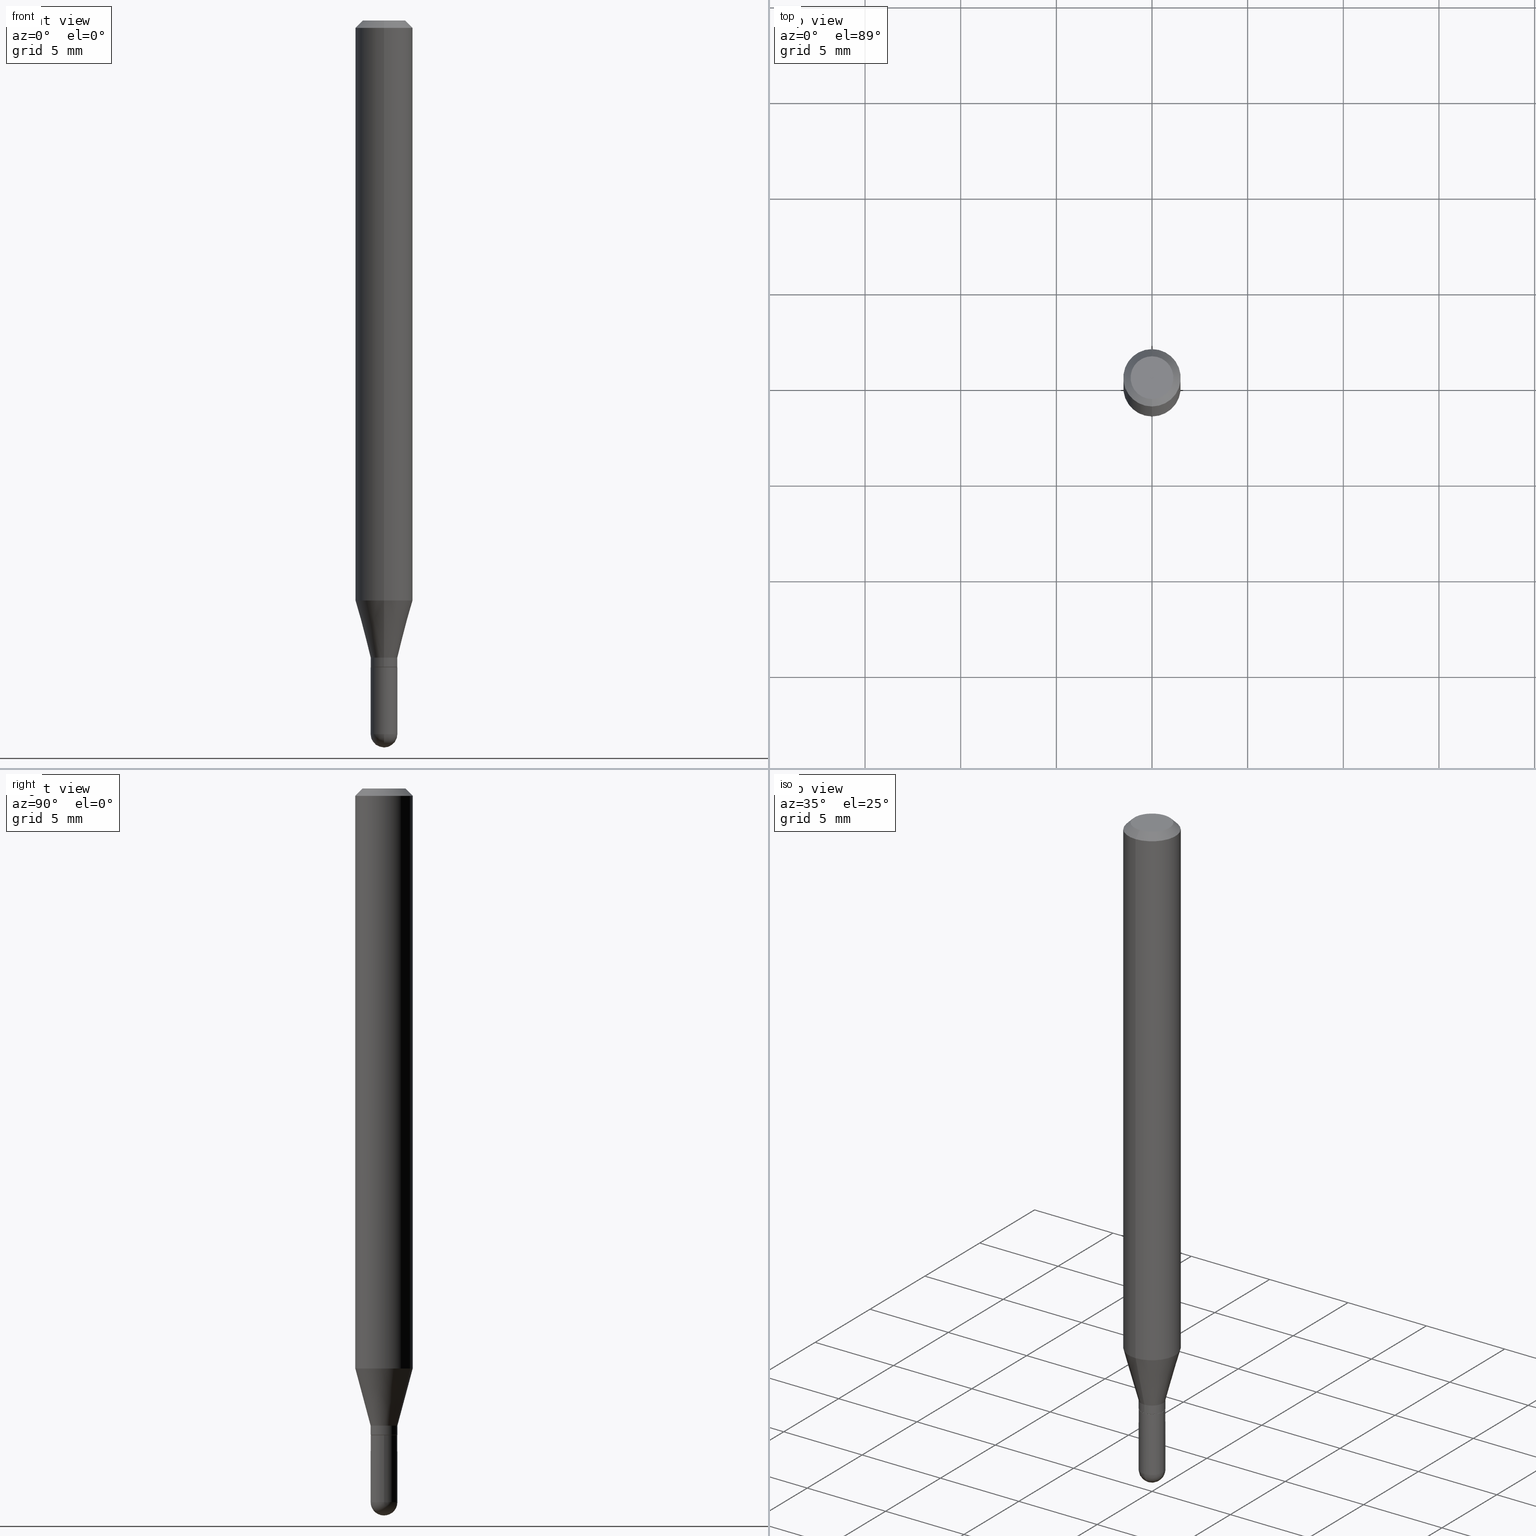
[diagram: canonical four-view strip — front | top / right | iso, engineering-drawing reading convention]
A machine part, canonical four-view strip (front | top / right | iso — engineering-drawing reading convention). The complete STEP part file that produces these views, byte-faithful:
ISO-10303-21;
HEADER;
FILE_DESCRIPTION (( 'STEP AP203' ),
    '1' );
FILE_NAME ('02963.STEP',
    '2024-03-07T22:07:11',
    ( '' ),
    ( '' ),
    'SwSTEP 2.0',
    'SolidWorks 2023',
    '' );
FILE_SCHEMA (( 'CONFIG_CONTROL_DESIGN' ));
ENDSEC;

DATA;
#1 = EDGE_CURVE ( 'NONE', #76, #221, #157, .T. ) ;
#2 = ORIENTED_EDGE ( 'NONE', *, *, #296, .T. ) ;
#3 = APPROVAL_ROLE ( '' ) ;
#4 = CARTESIAN_POINT ( 'NONE',  ( 1.939781668625396050E-16, 0.02704999999999535901, -1.330699999999999772 ) ) ;
#5 = CARTESIAN_POINT ( 'NONE',  ( 3.254189848624601960E-29, -4.646107761550832387E-15, -1.330699999999999772 ) ) ;
#6 = CARTESIAN_POINT ( 'NONE',  ( 1.957545237019436288E-16, 0.02754999999999489455, -1.468549999999999800 ) ) ;
#7 = DIRECTION ( 'NONE',  ( -2.445472194051704055E-29, 3.491476487225395476E-15, 1.000000000000000000 ) ) ;
#8 = DIRECTION ( 'NONE',  ( 1.000000000000000000, -6.982962677686256455E-15, 0.000000000000000000 ) ) ;
#9 = CIRCLE ( 'NONE', #241, 0.02754999999999999810 ) ;
#10 = AXIS2_PLACEMENT_3D ( 'NONE', #14, #167, #288 ) ;
#11 = ADVANCED_FACE ( 'NONE', ( #177 ), #122, .F. ) ;
#12 = EDGE_CURVE ( 'NONE', #39, #84, #470, .T. ) ;
#13 = CARTESIAN_POINT ( 'NONE',  ( 3.668208291077578240E-31, -5.237214730838125755E-17, -0.01500000000000009139 ) ) ;
#14 = CARTESIAN_POINT ( 'NONE',  ( 1.923806217702892103E-16, 0.02754999999999535945, -1.330699999999999772 ) ) ;
#15 = ORIENTED_EDGE ( 'NONE', *, *, #158, .T. ) ;
#16 = CARTESIAN_POINT ( 'NONE',  ( -1.923806217702240553E-16, -0.02755000000000450144, -1.311099999999999932 ) ) ;
#17 = FACE_OUTER_BOUND ( 'NONE', #312, .T. ) ;
#18 = CALENDAR_DATE ( 2024, 7, 3 ) ;
#19 = CARTESIAN_POINT ( 'NONE',  ( 3.254189848624601960E-29, -4.646107761550832387E-15, -1.330699999999999772 ) ) ;
#20 = CARTESIAN_POINT ( 'NONE',  ( -3.536586717851222218E-16, -0.04404999999999999888, 6.213451263233718482E-17 ) ) ;
#21 = CARTESIAN_POINT ( 'NONE',  ( 3.591293215323181808E-29, -5.127414920158100475E-15, -1.468549999999999800 ) ) ;
#22 = AXIS2_PLACEMENT_3D ( 'NONE', #115, #77, #482 ) ;
#23 = ADVANCED_FACE ( 'NONE', ( #452 ), #85, .T. ) ;
#24 = ORIENTED_EDGE ( 'NONE', *, *, #430, .T. ) ;
#25 = ORIENTED_EDGE ( 'NONE', *, *, #189, .T. ) ;
#26 = DIRECTION ( 'NONE',  ( -2.445472194051704055E-29, 3.491476487225395476E-15, 1.000000000000000000 ) ) ;
#27 = CARTESIAN_POINT ( 'NONE',  ( 2.918769859605206058E-29, -4.167218241622863015E-15, -1.193540399561580534 ) ) ;
#28 = CIRCLE ( 'NONE', #112, 0.02754999999999992524 ) ;
#29 = LOCAL_TIME ( 17, 7, 11.00000000000000000, #107 ) ;
#30 = CARTESIAN_POINT ( 'NONE',  ( 4.195754854663390985E-16, 0.05904999999999999832, -2.061716865706596050E-16 ) ) ;
#31 = ORIENTED_EDGE ( 'NONE', *, *, #278, .T. ) ;
#32 = DIRECTION ( 'NONE',  ( -6.982962677686265133E-15, -1.000000000000000000, 3.491476487225395476E-15 ) ) ;
#33 = ORIENTED_EDGE ( 'NONE', *, *, #359, .F. ) ;
#34 = LINE ( 'NONE', #504, #494 ) ;
#35 = EDGE_LOOP ( 'NONE', ( #512, #237, #231, #390 ) ) ;
#36 = DATE_AND_TIME ( #401, #174 ) ;
#37 = AXIS2_PLACEMENT_3D ( 'NONE', #489, #251, #124 ) ;
#38 = FACE_OUTER_BOUND ( 'NONE', #322, .T. ) ;
#39 = VERTEX_POINT ( 'NONE', #412 ) ;
#40 = CARTESIAN_POINT ( 'NONE',  ( 3.076650045841537882E-16, 0.02754999999999534904, -1.311099999999999932 ) ) ;
#41 = ORIENTED_EDGE ( 'NONE', *, *, #149, .F. ) ;
#42 = VERTEX_POINT ( 'NONE', #162 ) ;
#43 = PERSON_AND_ORGANIZATION_ROLE ( 'creator' ) ;
#44 = ADVANCED_FACE ( 'NONE', ( #457 ), #459, .T. ) ;
#45 = EDGE_CURVE ( 'NONE', #441, #221, #249, .T. ) ;
#46 = ADVANCED_BREP_SHAPE_REPRESENTATION ( '02963', ( #468, #104, #499 ), #447 ) ;
#47 = DIRECTION ( 'NONE',  ( 0.000000000000000000, 0.000000000000000000, 1.000000000000000000 ) ) ;
#48 = CARTESIAN_POINT ( 'NONE',  ( -0.02754999999999999810, -4.691010045176429992E-15, -1.468549999999999800 ) ) ;
#49 = EDGE_CURVE ( 'NONE', #134, #61, #233, .T. ) ;
#50 = DIRECTION ( 'NONE',  ( -6.982962677686266711E-15, -1.000000000000000000, 0.000000000000000000 ) ) ;
#51 = VECTOR ( 'NONE', #212, 39.37007874015748854 ) ;
#52 = CARTESIAN_POINT ( 'NONE',  ( 3.591293215323181808E-29, -5.127414920158100475E-15, -1.468549999999999800 ) ) ;
#53 = CC_DESIGN_PERSON_AND_ORGANIZATION_ASSIGNMENT ( #416, #294, ( #97 ) ) ;
#54 = COORDINATED_UNIVERSAL_TIME_OFFSET ( 5, 0, .BEHIND. ) ;
#55 = DIRECTION ( 'NONE',  ( -2.445472194051704055E-29, 3.491476487225395476E-15, 1.000000000000000000 ) ) ;
#56 = DIRECTION ( 'NONE',  ( -2.445472194051704055E-29, 3.491476487225395476E-15, 1.000000000000000000 ) ) ;
#57 = DIRECTION ( 'NONE',  ( -6.982962677686265922E-15, -1.000000000000000000, 3.491476487225395476E-15 ) ) ;
#58 = AXIS2_PLACEMENT_3D ( 'NONE', #125, #331, #216 ) ;
#59 = ORIENTED_EDGE ( 'NONE', *, *, #211, .T. ) ;
#60 = DIRECTION ( 'NONE',  ( 1.000000000000000000, -6.982962677686257244E-15, 0.000000000000000000 ) ) ;
#61 = VERTEX_POINT ( 'NONE', #417 ) ;
#62 = DIRECTION ( 'NONE',  ( -2.445472194051704055E-29, 3.491476487225395476E-15, 1.000000000000000000 ) ) ;
#63 = ORIENTED_EDGE ( 'NONE', *, *, #437, .T. ) ;
#64 = AXIS2_PLACEMENT_3D ( 'NONE', #454, #464, #254 ) ;
#65 = APPROVAL ( #381, 'UNSPECIFIED' ) ;
#66 = AXIS2_PLACEMENT_3D ( 'NONE', #407, #375, #340 ) ;
#67 = CARTESIAN_POINT ( 'NONE',  ( 4.195754854663680892E-16, 0.05904999999999580723, -1.193540399561580756 ) ) ;
#68 = ORIENTED_EDGE ( 'NONE', *, *, #395, .F. ) ;
#69 = DATE_TIME_ROLE ( 'classification_date' ) ;
#70 = ORIENTED_EDGE ( 'NONE', *, *, #430, .F. ) ;
#71 = LOCAL_TIME ( 17, 7, 11.00000000000000000, #197 ) ;
#72 = AXIS2_PLACEMENT_3D ( 'NONE', #510, #153, #8 ) ;
#73 = DIRECTION ( 'NONE',  ( -6.982962677686265922E-15, -1.000000000000000000, 3.491476487225395871E-15 ) ) ;
#74 = ORIENTED_EDGE ( 'NONE', *, *, #209, .T. ) ;
#75 = DIRECTION ( 'NONE',  ( 1.000000000000000000, -6.982962677686265922E-15, 4.876176775795936353E-29 ) ) ;
#76 = VERTEX_POINT ( 'NONE', #48 ) ;
#77 = DIRECTION ( 'NONE',  ( -2.445472194051704055E-29, 3.491476487225395476E-15, 1.000000000000000000 ) ) ;
#78 = EDGE_LOOP ( 'NONE', ( #473, #140, #279, #343 ) ) ;
#79 = AXIS2_PLACEMENT_3D ( 'NONE', #283, #55, #328 ) ;
#80 = CIRCLE ( 'NONE', #144, 0.02755000000000005014 ) ;
#81 = ORIENTED_EDGE ( 'NONE', *, *, #256, .T. ) ;
#82 = CARTESIAN_POINT ( 'NONE',  ( 0.000000000000000000, 0.000000000000000000, 0.000000000000000000 ) ) ;
#83 = DIRECTION ( 'NONE',  ( -2.445468806185136877E-29, 3.491481338843145188E-15, 1.000000000000000000 ) ) ;
#84 = VERTEX_POINT ( 'NONE', #6 ) ;
#85 = SPHERICAL_SURFACE ( 'NONE', #198, 0.02755000000000005014 ) ;
#86 = FACE_OUTER_BOUND ( 'NONE', #406, .T. ) ;
#87 = DIRECTION ( 'NONE',  ( 1.000000000000000000, -6.982962677686256455E-15, 0.000000000000000000 ) ) ;
#88 = CARTESIAN_POINT ( 'NONE',  ( 3.599717260347271507E-16, 0.04404999999999999888, -2.454645658922201879E-16 ) ) ;
#89 = ORIENTED_EDGE ( 'NONE', *, *, #49, .F. ) ;
#90 = DIRECTION ( 'NONE',  ( -6.982962677686266711E-15, -1.000000000000000000, 0.000000000000000000 ) ) ;
#91 = DIRECTION ( 'NONE',  ( -2.445472194051704055E-29, 3.491476487225395476E-15, 1.000000000000000000 ) ) ;
#92 = ADVANCED_FACE ( 'NONE', ( #159 ), #392, .T. ) ;
#93 = DIRECTION ( 'NONE',  ( -6.982962677686265922E-15, -1.000000000000000000, 3.491476487225395871E-15 ) ) ;
#94 = APPROVAL ( #476, 'UNSPECIFIED' ) ;
#95 = ORIENTED_EDGE ( 'NONE', *, *, #348, .F. ) ;
#96 = CC_DESIGN_PERSON_AND_ORGANIZATION_ASSIGNMENT ( #326, #373, ( #226 ) ) ;
#97 = PRODUCT_DEFINITION_FORMATION_WITH_SPECIFIED_SOURCE ( 'ANY', '', #226, .NOT_KNOWN. ) ;
#98 = ADVANCED_FACE ( 'NONE', ( #214 ), #338, .T. ) ;
#99 = CARTESIAN_POINT ( 'NONE',  ( -0.02755000000000000157, -4.691010045176429992E-15, -1.330699999999999772 ) ) ;
#100 = ORIENTED_EDGE ( 'NONE', *, *, #311, .T. ) ;
#101 = DIRECTION ( 'NONE',  ( 7.105427357601001070E-15, 1.000000000000000000, 0.000000000000000000 ) ) ;
#102 = ORIENTED_EDGE ( 'NONE', *, *, #127, .T. ) ;
#103 = CC_DESIGN_DATE_AND_TIME_ASSIGNMENT ( #365, #321, ( #141 ) ) ;
#104 = MANIFOLD_SOLID_BREP ( 'Body-Move/Copy2[2]', #171 ) ;
#105 = VECTOR ( 'NONE', #217, 39.37007874015748143 ) ;
#106 = EDGE_LOOP ( 'NONE', ( #444, #478, #70, #262 ) ) ;
#107 = COORDINATED_UNIVERSAL_TIME_OFFSET ( 5, 0, .BEHIND. ) ;
#108 = DIRECTION ( 'NONE',  ( -2.445472194051704055E-29, 3.491476487225395476E-15, 1.000000000000000000 ) ) ;
#109 = ORIENTED_EDGE ( 'NONE', *, *, #341, .T. ) ;
#110 = ORIENTED_EDGE ( 'NONE', *, *, #45, .T. ) ;
#111 = DIRECTION ( 'NONE',  ( -6.982962677686265922E-15, -1.000000000000000000, 4.626330217890369336E-15 ) ) ;
#112 = AXIS2_PLACEMENT_3D ( 'NONE', #389, #26, #178 ) ;
#113 = CARTESIAN_POINT ( 'NONE',  ( 0.000000000000000000, 0.000000000000000000, 0.000000000000000000 ) ) ;
#114 = EDGE_LOOP ( 'NONE', ( #116, #475, #33, #358 ) ) ;
#115 = CARTESIAN_POINT ( 'NONE',  ( 3.206258593621188259E-29, -4.577674822401215299E-15, -1.311099999999999932 ) ) ;
#116 = ORIENTED_EDGE ( 'NONE', *, *, #189, .F. ) ;
#117 = DIRECTION ( 'NONE',  ( 1.000000000000000000, -6.982962677686266711E-15, 4.883557194083112901E-29 ) ) ;
#118 = CC_DESIGN_SECURITY_CLASSIFICATION ( #207, ( #97 ) ) ;
#119 = CARTESIAN_POINT ( 'NONE',  ( 0.02754999999999999810, -1.923806217702566205E-16, 1.343386701731780333E-30 ) ) ;
#120 = DATE_AND_TIME ( #486, #71 ) ;
#121 = APPLICATION_CONTEXT ( 'configuration controlled 3d designs of mechanical parts and assemblies' ) ;
#122 = PLANE ( 'NONE',  #327 ) ;
#123 = DIRECTION ( 'NONE',  ( -2.445472194051704055E-29, 3.491476487225395476E-15, 1.000000000000000000 ) ) ;
#124 = DIRECTION ( 'NONE',  ( -6.982962677686265922E-15, -1.000000000000000000, 3.505890868245046092E-15 ) ) ;
#125 = CARTESIAN_POINT ( 'NONE',  ( 3.591293215323181808E-29, -5.127414920158100475E-15, -1.468549999999999800 ) ) ;
#126 = CYLINDRICAL_SURFACE ( 'NONE', #137, 0.05904999999999999832 ) ;
#127 = EDGE_CURVE ( 'NONE', #42, #186, #255, .T. ) ;
#128 = CARTESIAN_POINT ( 'NONE',  ( 3.254189848624601960E-29, -4.646107761550832387E-15, -1.330699999999999772 ) ) ;
#129 = CONICAL_SURFACE ( 'NONE', #22, 0.02754999999999992524, 0.2617993877991508511 ) ;
#130 = PERSON_AND_ORGANIZATION ( #345, #218 ) ;
#131 = CIRCLE ( 'NONE', #446, 0.02754999999999999810 ) ;
#132 = CARTESIAN_POINT ( 'NONE',  ( 3.075995059520799729E-16, 0.04404999999999999888, -1.996320525772494279E-16 ) ) ;
#133 = LINE ( 'NONE', #248, #200 ) ;
#134 = VERTEX_POINT ( 'NONE', #4 ) ;
#135 = EDGE_CURVE ( 'NONE', #61, #134, #151, .T. ) ;
#136 = ADVANCED_FACE ( 'NONE', ( #17 ), #143, .T. ) ;
#137 = AXIS2_PLACEMENT_3D ( 'NONE', #383, #165, #57 ) ;
#138 = DIRECTION ( 'NONE',  ( -2.445468806185136597E-29, 3.491481338843145583E-15, 1.000000000000000000 ) ) ;
#139 = LINE ( 'NONE', #30, #427 ) ;
#140 = ORIENTED_EDGE ( 'NONE', *, *, #49, .T. ) ;
#141 = PRODUCT_DEFINITION ( 'UNKNOWN', '', #97, #398 ) ;
#142 = ORIENTED_EDGE ( 'NONE', *, *, #382, .F. ) ;
#143 = CONICAL_SURFACE ( 'NONE', #263, 0.05904999999999999832, 0.7853981633974483900 ) ;
#144 = AXIS2_PLACEMENT_3D ( 'NONE', #386, #172, #176 ) ;
#145 = EDGE_LOOP ( 'NONE', ( #182, #81, #236, #479 ) ) ;
#146 = FACE_OUTER_BOUND ( 'NONE', #431, .T. ) ;
#147 = ORIENTED_EDGE ( 'NONE', *, *, #1, .F. ) ;
#148 = EDGE_CURVE ( 'NONE', #61, #42, #460, .T. ) ;
#149 = EDGE_CURVE ( 'NONE', #433, #273, #467, .T. ) ;
#150 = CYLINDRICAL_SURFACE ( 'NONE', #414, 0.02754999999999999810 ) ;
#151 = CIRCLE ( 'NONE', #66, 0.02705000000000000113 ) ;
#152 = CONICAL_SURFACE ( 'NONE', #349, 0.02705000000000000113, 0.7853981633974739252 ) ;
#153 = DIRECTION ( 'NONE',  ( -2.445468806185136597E-29, 3.491481338843145583E-15, 1.000000000000000000 ) ) ;
#154 = CC_DESIGN_PERSON_AND_ORGANIZATION_ASSIGNMENT ( #451, #43, ( #141 ) ) ;
#155 = ORIENTED_EDGE ( 'NONE', *, *, #211, .F. ) ;
#156 = APPROVAL_STATUS ( 'not_yet_approved' ) ;
#157 = LINE ( 'NONE', #243, #367 ) ;
#158 = EDGE_CURVE ( 'NONE', #84, #76, #9, .T. ) ;
#159 = FACE_OUTER_BOUND ( 'NONE', #357, .T. ) ;
#160 = FACE_OUTER_BOUND ( 'NONE', #78, .T. ) ;
#161 = EDGE_CURVE ( 'NONE', #273, #402, #133, .T. ) ;
#162 = CARTESIAN_POINT ( 'NONE',  ( -1.923806217702242525E-16, -0.02755000000000466451, -1.330199999999999827 ) ) ;
#163 = CARTESIAN_POINT ( 'NONE',  ( 0.02755000000000000157, -4.838494839368829407E-15, -1.330699999999999772 ) ) ;
#164 = APPROVAL_PERSON_ORGANIZATION ( #169, #65, #213 ) ;
#165 = DIRECTION ( 'NONE',  ( -2.445472194051704055E-29, 3.491476487225395476E-15, 1.000000000000000000 ) ) ;
#166 = APPROVAL_DATE_TIME ( #120, #289 ) ;
#167 = DIRECTION ( 'NONE',  ( 2.438088387897960049E-29, -3.491481338843145188E-15, -1.000000000000000000 ) ) ;
#168 = DIRECTION ( 'NONE',  ( 6.982962677686265922E-15, 1.000000000000000000, -3.505890868245046092E-15 ) ) ;
#169 = PERSON_AND_ORGANIZATION ( #345, #218 ) ;
#170 = CARTESIAN_POINT ( 'NONE',  ( 3.668208291077578240E-31, -5.237214730838125755E-17, -0.01500000000000009139 ) ) ;
#171 = CLOSED_SHELL ( 'NONE', ( #44, #369, #98, #319, #440, #92, #463, #136, #11, #448, #455, #295 ) ) ;
#172 = DIRECTION ( 'NONE',  ( -1.000000000000000000, 6.982962677686265922E-15, -4.883557194083112340E-29 ) ) ;
#173 = CIRCLE ( 'NONE', #72, 0.02755000000000000157 ) ;
#174 = LOCAL_TIME ( 17, 7, 11.00000000000000000, #404 ) ;
#175 = EDGE_LOOP ( 'NONE', ( #193, #63, #95, #308 ) ) ;
#176 = DIRECTION ( 'NONE',  ( -6.982962677686266711E-15, -1.000000000000000000, 0.000000000000000000 ) ) ;
#177 = FACE_OUTER_BOUND ( 'NONE', #298, .T. ) ;
#178 = DIRECTION ( 'NONE',  ( -6.982962677686265922E-15, -1.000000000000000000, 0.000000000000000000 ) ) ;
#179 = CLOSED_SHELL ( 'NONE', ( #445, #480, #353, #23, #305 ) ) ;
#180 = AXIS2_PLACEMENT_3D ( 'NONE', #5, #332, #287 ) ;
#181 = DIRECTION ( 'NONE',  ( -2.445472194051704055E-29, 3.491476487225395476E-15, 1.000000000000000000 ) ) ;
#182 = ORIENTED_EDGE ( 'NONE', *, *, #437, .F. ) ;
#183 = DIRECTION ( 'NONE',  ( -2.445472194051704055E-29, 3.491476487225395476E-15, 1.000000000000000000 ) ) ;
#184 = DATE_AND_TIME ( #442, #29 ) ;
#185 = LINE ( 'NONE', #435, #293 ) ;
#186 = VERTEX_POINT ( 'NONE', #16 ) ;
#187 = CIRCLE ( 'NONE', #257, 0.04404999999999999888 ) ;
#188 = ORIENTED_EDGE ( 'NONE', *, *, #348, .T. ) ;
#189 = EDGE_CURVE ( 'NONE', #466, #84, #291, .T. ) ;
#190 = CC_DESIGN_APPROVAL ( #289, ( #141 ) ) ;
#191 = SHAPE_DEFINITION_REPRESENTATION ( #425, #46 ) ;
#192 = DIRECTION ( 'NONE',  ( -2.445472194051704055E-29, 3.491476487225395476E-15, 1.000000000000000000 ) ) ;
#193 = ORIENTED_EDGE ( 'NONE', *, *, #247, .T. ) ;
#194 = DIRECTION ( 'NONE',  ( -2.445472194051704055E-29, 3.491476487225395476E-15, 1.000000000000000000 ) ) ;
#195 = VERTEX_POINT ( 'NONE', #224 ) ;
#196 = CARTESIAN_POINT ( 'NONE',  ( -4.051124067684085231E-16, -0.05905000000000005383, -0.01499999999999988495 ) ) ;
#197 = COORDINATED_UNIVERSAL_TIME_OFFSET ( 5, 0, .BEHIND. ) ;
#198 = AXIS2_PLACEMENT_3D ( 'NONE', #378, #117, #50 ) ;
#199 = AXIS2_PLACEMENT_3D ( 'NONE', #490, #238, #371 ) ;
#200 = VECTOR ( 'NONE', #297, 39.37007874015748854 ) ;
#201 = EDGE_CURVE ( 'NONE', #350, #318, #187, .T. ) ;
#202 = EDGE_CURVE ( 'NONE', #195, #39, #131, .T. ) ;
#203 = MECHANICAL_CONTEXT ( 'NONE', #346, 'mechanical' ) ;
#204 = DIRECTION ( 'NONE',  ( 1.000000000000000000, -6.982962677686265922E-15, 4.876176775795936353E-29 ) ) ;
#205 = DIRECTION ( 'NONE',  ( -2.445472194051704055E-29, 3.491476487225395476E-15, 1.000000000000000000 ) ) ;
#206 = AXIS2_PLACEMENT_3D ( 'NONE', #376, #269, #204 ) ;
#207 = SECURITY_CLASSIFICATION ( '', '', #252 ) ;
#208 = FACE_OUTER_BOUND ( 'NONE', #268, .T. ) ;
#209 = EDGE_CURVE ( 'NONE', #318, #350, #300, .T. ) ;
#210 = PERSON_AND_ORGANIZATION ( #345, #218 ) ;
#211 = EDGE_CURVE ( 'NONE', #350, #303, #185, .T. ) ;
#212 = DIRECTION ( 'NONE',  ( -1.807323732225333689E-15, -0.2588190451025186856, 0.9659258262890687563 ) ) ;
#213 = APPROVAL_ROLE ( '' ) ;
#214 = FACE_OUTER_BOUND ( 'NONE', #501, .T. ) ;
#215 = DIRECTION ( 'NONE',  ( -6.982962677686266711E-15, -1.000000000000000000, 0.000000000000000000 ) ) ;
#216 = DIRECTION ( 'NONE',  ( 1.000000000000000000, -6.982962677686257244E-15, 0.000000000000000000 ) ) ;
#217 = DIRECTION ( 'NONE',  ( -4.937700262164674260E-15, -0.7071067811865632269, 0.7071067811865319186 ) ) ;
#218 = ORGANIZATION ( 'UNSPECIFIED', 'UNSPECIFIED', '' ) ;
#219 = LINE ( 'NONE', #498, #438 ) ;
#220 = ORIENTED_EDGE ( 'NONE', *, *, #202, .T. ) ;
#221 = VERTEX_POINT ( 'NONE', #99 ) ;
#222 = VECTOR ( 'NONE', #227, 39.37007874015748143 ) ;
#223 = AXIS2_PLACEMENT_3D ( 'NONE', #428, #62, #230 ) ;
#224 = CARTESIAN_POINT ( 'NONE',  ( -1.923806217702208999E-16, -0.02755000000000515370, -1.468549999999999800 ) ) ;
#225 = VERTEX_POINT ( 'NONE', #432 ) ;
#226 = PRODUCT ( '02963', '02963', '', ( #203 ) ) ;
#227 = DIRECTION ( 'NONE',  ( -2.445472194051704055E-29, 3.491476487225395476E-15, 1.000000000000000000 ) ) ;
#228 = ORIENTED_EDGE ( 'NONE', *, *, #395, .T. ) ;
#229 = APPROVAL_ROLE ( '' ) ;
#230 = DIRECTION ( 'NONE',  ( -6.982962677686265922E-15, -1.000000000000000000, 0.000000000000000000 ) ) ;
#231 = ORIENTED_EDGE ( 'NONE', *, *, #247, .F. ) ;
#232 = PERSON_AND_ORGANIZATION ( #345, #218 ) ;
#233 = CIRCLE ( 'NONE', #429, 0.02705000000000000113 ) ;
#234 = CC_DESIGN_APPROVAL ( #65, ( #97 ) ) ;
#235 = CARTESIAN_POINT ( 'NONE',  ( 3.252967112527576975E-29, -4.644362023307220487E-15, -1.330199999999999827 ) ) ;
#236 = ORIENTED_EDGE ( 'NONE', *, *, #399, .T. ) ;
#237 = ORIENTED_EDGE ( 'NONE', *, *, #161, .T. ) ;
#238 = DIRECTION ( 'NONE',  ( 1.000000000000000000, -6.982962677686266711E-15, 4.883557194083112901E-29 ) ) ;
#239 = CARTESIAN_POINT ( 'NONE',  ( 4.195754854663684343E-16, 0.05904999999999994975, -0.01500000000000029955 ) ) ;
#240 = ORIENTED_EDGE ( 'NONE', *, *, #127, .F. ) ;
#241 = AXIS2_PLACEMENT_3D ( 'NONE', #21, #422, #60 ) ;
#242 = AXIS2_PLACEMENT_3D ( 'NONE', #439, #192, #73 ) ;
#243 = CARTESIAN_POINT ( 'NONE',  ( -0.02754999999999999810, 1.957545237019075877E-16, -1.355166617365226390E-30 ) ) ;
#244 = DIRECTION ( 'NONE',  ( 6.982962677686265922E-15, 1.000000000000000000, -3.491476487225395476E-15 ) ) ;
#245 = ORIENTED_EDGE ( 'NONE', *, *, #311, .F. ) ;
#246 = COORDINATED_UNIVERSAL_TIME_OFFSET ( 5, 0, .BEHIND. ) ;
#247 = EDGE_CURVE ( 'NONE', #261, #402, #495, .T. ) ;
#248 = CARTESIAN_POINT ( 'NONE',  ( 1.957545237019390929E-16, 0.02754999999999534904, -1.311099999999999932 ) ) ;
#249 = CIRCLE ( 'NONE', #354, 0.02755000000000000157 ) ;
#250 = CYLINDRICAL_SURFACE ( 'NONE', #364, 0.05904999999999999832 ) ;
#251 = DIRECTION ( 'NONE',  ( -2.445472194051704055E-29, 3.491476487225395476E-15, 1.000000000000000000 ) ) ;
#252 = SECURITY_CLASSIFICATION_LEVEL ( 'unclassified' ) ;
#253 = EDGE_CURVE ( 'NONE', #134, #433, #34, .T. ) ;
#254 = DIRECTION ( 'NONE',  ( -6.982962677686265922E-15, -1.000000000000000000, 3.505890868245046092E-15 ) ) ;
#255 = LINE ( 'NONE', #418, #316 ) ;
#256 = EDGE_CURVE ( 'NONE', #402, #261, #272, .T. ) ;
#257 = AXIS2_PLACEMENT_3D ( 'NONE', #474, #183, #351 ) ;
#258 = ORIENTED_EDGE ( 'NONE', *, *, #161, .F. ) ;
#259 = DIRECTION ( 'NONE',  ( -2.445472194051704055E-29, 3.491476487225395476E-15, 1.000000000000000000 ) ) ;
#260 = CARTESIAN_POINT ( 'NONE',  ( 2.918769859605206058E-29, -4.167218241622863015E-15, -1.193540399561580534 ) ) ;
#261 = VERTEX_POINT ( 'NONE', #483 ) ;
#262 = ORIENTED_EDGE ( 'NONE', *, *, #148, .F. ) ;
#263 = AXIS2_PLACEMENT_3D ( 'NONE', #13, #361, #168 ) ;
#264 = DIRECTION ( 'NONE',  ( 1.000000000000000000, -6.982962677686257244E-15, 0.000000000000000000 ) ) ;
#265 = DIRECTION ( 'NONE',  ( -6.982962677686265922E-15, -1.000000000000000000, 4.626330217890369336E-15 ) ) ;
#266 = EDGE_LOOP ( 'NONE', ( #24, #420, #304, #240 ) ) ;
#267 = PERSON_AND_ORGANIZATION ( #345, #218 ) ;
#268 = EDGE_LOOP ( 'NONE', ( #110, #100 ) ) ;
#269 = DIRECTION ( 'NONE',  ( -2.445468806185136597E-29, 3.491481338843145583E-15, 1.000000000000000000 ) ) ;
#270 = CYLINDRICAL_SURFACE ( 'NONE', #242, 0.02754999999999992524 ) ;
#271 = AXIS2_PLACEMENT_3D ( 'NONE', #260, #356, #265 ) ;
#272 = CIRCLE ( 'NONE', #471, 0.05904999999999999832 ) ;
#273 = VERTEX_POINT ( 'NONE', #40 ) ;
#274 = APPROVAL_DATE_TIME ( #36, #94 ) ;
#275 = CC_DESIGN_PERSON_AND_ORGANIZATION_ASSIGNMENT ( #267, #434, ( #207 ) ) ;
#276 = DIRECTION ( 'NONE',  ( -2.445468806185136597E-29, 3.491481338843145583E-15, 1.000000000000000000 ) ) ;
#277 = ORIENTED_EDGE ( 'NONE', *, *, #202, .F. ) ;
#278 = EDGE_CURVE ( 'NONE', #39, #441, #405, .T. ) ;
#279 = ORIENTED_EDGE ( 'NONE', *, *, #148, .T. ) ;
#280 = APPLICATION_PROTOCOL_DEFINITION ( 'international standard', 'config_control_design', 1994, #346 ) ;
#281 =( NAMED_UNIT ( * ) PLANE_ANGLE_UNIT ( ) SI_UNIT ( $, .RADIAN. ) );
#282 = CIRCLE ( 'NONE', #37, 0.05904999999999999832 ) ;
#283 = CARTESIAN_POINT ( 'NONE',  ( 3.206258593621188259E-29, -4.577674822401215299E-15, -1.311099999999999932 ) ) ;
#284 = DIRECTION ( 'NONE',  ( -6.982962677686265922E-15, -1.000000000000000000, 3.491476487225395476E-15 ) ) ;
#285 = CARTESIAN_POINT ( 'NONE',  ( 0.000000000000000000, 0.000000000000000000, 0.000000000000000000 ) ) ;
#286 = CARTESIAN_POINT ( 'NONE',  ( 3.254185340390560677E-29, -4.646114217598572614E-15, -1.330699999999999772 ) ) ;
#287 = DIRECTION ( 'NONE',  ( -6.982962677686265922E-15, -1.000000000000000000, 3.491476487225395476E-15 ) ) ;
#288 = DIRECTION ( 'NONE',  ( -1.000000000000000000, 6.982962677686265922E-15, -4.876176775795935793E-29 ) ) ;
#289 = APPROVAL ( #156, 'UNSPECIFIED' ) ;
#290 =( CONVERSION_BASED_UNIT ( 'INCH', #323 ) LENGTH_UNIT ( ) NAMED_UNIT ( #508 ) );
#291 = CIRCLE ( 'NONE', #384, 0.02755000000000005014 ) ;
#292 = CARTESIAN_POINT ( 'NONE',  ( 0.000000000000000000, 0.000000000000000000, 0.000000000000000000 ) ) ;
#293 = VECTOR ( 'NONE', #472, 39.37007874015748143 ) ;
#294 = PERSON_AND_ORGANIZATION_ROLE ( 'design_supplier' ) ;
#295 = ADVANCED_FACE ( 'NONE', ( #38 ), #270, .T. ) ;
#296 = EDGE_CURVE ( 'NONE', #433, #42, #307, .T. ) ;
#297 = DIRECTION ( 'NONE',  ( 1.839019923739603865E-15, 0.2588190451025254579, 0.9659258262890669799 ) ) ;
#298 = EDGE_LOOP ( 'NONE', ( #409, #74 ) ) ;
#299 = LINE ( 'NONE', #330, #51 ) ;
#300 = CIRCLE ( 'NONE', #511, 0.04404999999999999888 ) ;
#301 = VECTOR ( 'NONE', #362, 39.37007874015748143 ) ;
#302 = APPROVAL_PERSON_ORGANIZATION ( #232, #94, #229 ) ;
#303 = VERTEX_POINT ( 'NONE', #239 ) ;
#304 = ORIENTED_EDGE ( 'NONE', *, *, #426, .F. ) ;
#305 = ADVANCED_FACE ( 'NONE', ( #146 ), #150, .T. ) ;
#306 = AXIS2_PLACEMENT_3D ( 'NONE', #292, #205, #93 ) ;
#307 = CIRCLE ( 'NONE', #485, 0.02754999999999992524 ) ;
#308 = ORIENTED_EDGE ( 'NONE', *, *, #399, .F. ) ;
#309 = EDGE_CURVE ( 'NONE', #318, #225, #408, .T. ) ;
#310 = CARTESIAN_POINT ( 'NONE',  ( 1.957545237019070454E-16, 0.02754999999999992524, -9.619017722305939304E-17 ) ) ;
#311 = EDGE_CURVE ( 'NONE', #221, #441, #173, .T. ) ;
#312 = EDGE_LOOP ( 'NONE', ( #507, #462, #59, #505 ) ) ;
#313 = DIRECTION ( 'NONE',  ( -2.445472194051704055E-29, 3.491476487225395476E-15, 1.000000000000000000 ) ) ;
#314 = ORIENTED_EDGE ( 'NONE', *, *, #256, .F. ) ;
#315 = CC_DESIGN_PERSON_AND_ORGANIZATION_ASSIGNMENT ( #130, #458, ( #97 ) ) ;
#316 = VECTOR ( 'NONE', #56, 39.37007874015748143 ) ;
#317 = CIRCLE ( 'NONE', #411, 0.02754999999999992524 ) ;
#318 = VERTEX_POINT ( 'NONE', #20 ) ;
#319 = ADVANCED_FACE ( 'NONE', ( #497 ), #126, .T. ) ;
#320 = ORIENTED_EDGE ( 'NONE', *, *, #209, .F. ) ;
#321 = DATE_TIME_ROLE ( 'creation_date' ) ;
#322 = EDGE_LOOP ( 'NONE', ( #41, #2, #102, #68 ) ) ;
#323 = LENGTH_MEASURE_WITH_UNIT ( LENGTH_MEASURE( 0.02539999999999999897 ), #335 );
#324 = FACE_OUTER_BOUND ( 'NONE', #145, .T. ) ;
#325 = ORIENTED_EDGE ( 'NONE', *, *, #12, .F. ) ;
#326 = PERSON_AND_ORGANIZATION ( #345, #218 ) ;
#327 = AXIS2_PLACEMENT_3D ( 'NONE', #132, #449, #244 ) ;
#328 = DIRECTION ( 'NONE',  ( -6.982962677686265922E-15, -1.000000000000000000, 0.000000000000000000 ) ) ;
#329 = CYLINDRICAL_SURFACE ( 'NONE', #206, 0.02754999999999999810 ) ;
#330 = CARTESIAN_POINT ( 'NONE',  ( -1.923806217702240553E-16, -0.02755000000000450144, -1.311099999999999932 ) ) ;
#331 = DIRECTION ( 'NONE',  ( -2.445468806185136597E-29, 3.491481338843145583E-15, 1.000000000000000000 ) ) ;
#332 = DIRECTION ( 'NONE',  ( -2.445472194051703774E-29, 3.491476487225395476E-15, 1.000000000000000000 ) ) ;
#333 = ORIENTED_EDGE ( 'NONE', *, *, #135, .F. ) ;
#334 = CC_DESIGN_DATE_AND_TIME_ASSIGNMENT ( #184, #69, ( #207 ) ) ;
#335 =( LENGTH_UNIT ( ) NAMED_UNIT ( * ) SI_UNIT ( $, .METRE. ) );
#336 = DIRECTION ( 'NONE',  ( 1.000000000000000000, -6.982962677686257244E-15, 0.000000000000000000 ) ) ;
#337 = DATE_AND_TIME ( #18, #465 ) ;
#338 = CONICAL_SURFACE ( 'NONE', #363, 0.05904999999999999832, 0.7853981633974483900 ) ;
#339 = DIRECTION ( 'NONE',  ( 6.982962677686265922E-15, 1.000000000000000000, -3.505890868245046092E-15 ) ) ;
#340 = DIRECTION ( 'NONE',  ( -6.982962677686266711E-15, -1.000000000000000000, 0.000000000000000000 ) ) ;
#341 = EDGE_CURVE ( 'NONE', #186, #261, #299, .T. ) ;
#342 = CARTESIAN_POINT ( 'NONE',  ( 3.206258593621188259E-29, -4.577674822401215299E-15, -1.311099999999999932 ) ) ;
#343 = ORIENTED_EDGE ( 'NONE', *, *, #296, .F. ) ;
#344 = DIRECTION ( 'NONE',  ( -2.445472194051704055E-29, 3.491476487225395476E-15, 1.000000000000000000 ) ) ;
#345 = PERSON ( 'UNSPECIFIED', 'UNSPECIFIED', 'UNSPECIFIED', ('UNSPECIFIED'), ('UNSPECIFIED'), ('UNSPECIFIED') ) ;
#346 = APPLICATION_CONTEXT ( 'configuration controlled 3d designs of mechanical parts and assemblies' ) ;
#347 = EDGE_CURVE ( 'NONE', #303, #225, #282, .T. ) ;
#348 = EDGE_CURVE ( 'NONE', #225, #303, #355, .T. ) ;
#349 = AXIS2_PLACEMENT_3D ( 'NONE', #128, #91, #215 ) ;
#350 = VERTEX_POINT ( 'NONE', #88 ) ;
#351 = DIRECTION ( 'NONE',  ( -6.982962677686265133E-15, -1.000000000000000000, 3.491476487225395476E-15 ) ) ;
#352 = DIRECTION ( 'NONE',  ( 1.000000000000000000, -7.105427357601001070E-15, 4.926315508542082329E-29 ) ) ;
#353 = ADVANCED_FACE ( 'NONE', ( #208 ), #377, .F. ) ;
#354 = AXIS2_PLACEMENT_3D ( 'NONE', #286, #415, #87 ) ;
#355 = CIRCLE ( 'NONE', #64, 0.05904999999999999832 ) ;
#356 = DIRECTION ( 'NONE',  ( -2.445472194051704055E-29, 3.491476487225395476E-15, 1.000000000000000000 ) ) ;
#357 = EDGE_LOOP ( 'NONE', ( #258, #228, #109, #314 ) ) ;
#358 = ORIENTED_EDGE ( 'NONE', *, *, #158, .F. ) ;
#359 = EDGE_CURVE ( 'NONE', #76, #195, #456, .T. ) ;
#360 = FACE_OUTER_BOUND ( 'NONE', #35, .T. ) ;
#361 = DIRECTION ( 'NONE',  ( 2.445472194051704055E-29, -3.491476487225395476E-15, -1.000000000000000000 ) ) ;
#362 = DIRECTION ( 'NONE',  ( -4.851104656540964275E-15, -0.7071067811865500152, -0.7071067811865450192 ) ) ;
#363 = AXIS2_PLACEMENT_3D ( 'NONE', #170, #487, #339 ) ;
#364 = AXIS2_PLACEMENT_3D ( 'NONE', #285, #123, #284 ) ;
#365 = DATE_AND_TIME ( #413, #374 ) ;
#366 = CC_DESIGN_APPROVAL ( #94, ( #207 ) ) ;
#367 = VECTOR ( 'NONE', #388, 39.37007874015748143 ) ;
#368 =( NAMED_UNIT ( * ) SI_UNIT ( $, .STERADIAN. ) SOLID_ANGLE_UNIT ( ) );
#369 = ADVANCED_FACE ( 'NONE', ( #492 ), #152, .T. ) ;
#370 = FACE_OUTER_BOUND ( 'NONE', #397, .T. ) ;
#371 = DIRECTION ( 'NONE',  ( -6.982962677686266711E-15, -1.000000000000000000, 0.000000000000000000 ) ) ;
#372 = DIRECTION ( 'NONE',  ( -6.982962677686266711E-15, -1.000000000000000000, 0.000000000000000000 ) ) ;
#373 = PERSON_AND_ORGANIZATION_ROLE ( 'design_owner' ) ;
#374 = LOCAL_TIME ( 17, 7, 11.00000000000000000, #246 ) ;
#375 = DIRECTION ( 'NONE',  ( -2.445472194051704055E-29, 3.491476487225395476E-15, 1.000000000000000000 ) ) ;
#376 = CARTESIAN_POINT ( 'NONE',  ( 0.000000000000000000, 0.000000000000000000, 0.000000000000000000 ) ) ;
#377 = PLANE ( 'NONE',  #10 ) ;
#378 = CARTESIAN_POINT ( 'NONE',  ( 3.588937232196492421E-29, -5.130788822089751023E-15, -1.468549999999999800 ) ) ;
#379 = FACE_OUTER_BOUND ( 'NONE', #424, .T. ) ;
#380 = DIRECTION ( 'NONE',  ( -2.445468806185136597E-29, 3.491481338843145583E-15, 1.000000000000000000 ) ) ;
#381 = APPROVAL_STATUS ( 'not_yet_approved' ) ;
#382 = EDGE_CURVE ( 'NONE', #466, #195, #80, .T. ) ;
#383 = CARTESIAN_POINT ( 'NONE',  ( 0.000000000000000000, 0.000000000000000000, 0.000000000000000000 ) ) ;
#384 = AXIS2_PLACEMENT_3D ( 'NONE', #461, #352, #101 ) ;
#385 = AXIS2_PLACEMENT_3D ( 'NONE', #453, #7, #372 ) ;
#386 = CARTESIAN_POINT ( 'NONE',  ( 3.588937232196492421E-29, -5.130788822089751023E-15, -1.468549999999999800 ) ) ;
#387 = ORIENTED_EDGE ( 'NONE', *, *, #278, .F. ) ;
#388 = DIRECTION ( 'NONE',  ( -2.445468806185136877E-29, 3.491481338843145188E-15, 1.000000000000000000 ) ) ;
#389 = CARTESIAN_POINT ( 'NONE',  ( 3.252967112527576975E-29, -4.644362023307220487E-15, -1.330199999999999827 ) ) ;
#390 = ORIENTED_EDGE ( 'NONE', *, *, #341, .F. ) ;
#391 = SPHERICAL_SURFACE ( 'NONE', #199, 0.02755000000000005014 ) ;
#392 = CONICAL_SURFACE ( 'NONE', #79, 0.02754999999999992524, 0.2617993877991508511 ) ;
#393 = CONICAL_SURFACE ( 'NONE', #385, 0.02705000000000000113, 0.7853981633974739252 ) ;
#394 = ORIENTED_EDGE ( 'NONE', *, *, #309, .T. ) ;
#395 = EDGE_CURVE ( 'NONE', #273, #186, #317, .T. ) ;
#396 = CARTESIAN_POINT ( 'NONE',  ( 2.241642737905308644E-45, -3.200462851793304302E-31, -9.166502662994148305E-17 ) ) ;
#397 = EDGE_LOOP ( 'NONE', ( #333, #89 ) ) ;
#398 = DESIGN_CONTEXT ( 'detailed design', #121, 'design' ) ;
#399 = EDGE_CURVE ( 'NONE', #261, #225, #219, .T. ) ;
#400 = ORIENTED_EDGE ( 'NONE', *, *, #359, .T. ) ;
#401 = CALENDAR_DATE ( 2024, 7, 3 ) ;
#402 = VERTEX_POINT ( 'NONE', #67 ) ;
#403 = UNCERTAINTY_MEASURE_WITH_UNIT (LENGTH_MEASURE( 1.000000000000000082E-05 ), #290, 'distance_accuracy_value', 'NONE');
#404 = COORDINATED_UNIVERSAL_TIME_OFFSET ( 5, 0, .BEHIND. ) ;
#405 = LINE ( 'NONE', #119, #509 ) ;
#406 = EDGE_LOOP ( 'NONE', ( #142, #25, #325, #277 ) ) ;
#407 = CARTESIAN_POINT ( 'NONE',  ( 3.254189848624601960E-29, -4.646107761550832387E-15, -1.330699999999999772 ) ) ;
#408 = LINE ( 'NONE', #196, #301 ) ;
#409 = ORIENTED_EDGE ( 'NONE', *, *, #201, .T. ) ;
#410 = DIRECTION ( 'NONE',  ( 1.000000000000000000, 0.000000000000000000, 0.000000000000000000 ) ) ;
#411 = AXIS2_PLACEMENT_3D ( 'NONE', #342, #344, #496 ) ;
#412 = CARTESIAN_POINT ( 'NONE',  ( 0.02754999999999999810, -5.079145190648592548E-15, -1.468549999999999800 ) ) ;
#413 = CALENDAR_DATE ( 2024, 7, 3 ) ;
#414 = AXIS2_PLACEMENT_3D ( 'NONE', #113, #276, #75 ) ;
#415 = DIRECTION ( 'NONE',  ( -2.445468806185136597E-29, 3.491481338843145583E-15, 1.000000000000000000 ) ) ;
#416 = PERSON_AND_ORGANIZATION ( #345, #218 ) ;
#417 = CARTESIAN_POINT ( 'NONE',  ( -1.888891404313809742E-16, -0.02705000000000464672, -1.330699999999999772 ) ) ;
#418 = CARTESIAN_POINT ( 'NONE',  ( -1.923806217702561028E-16, -0.02754999999999992524, 9.619017722305939304E-17 ) ) ;
#419 = CARTESIAN_POINT ( 'NONE',  ( -1.888891404313809742E-16, -0.02705000000000464672, -1.330699999999999772 ) ) ;
#420 = ORIENTED_EDGE ( 'NONE', *, *, #149, .T. ) ;
#421 = CIRCLE ( 'NONE', #223, 0.02754999999999992524 ) ;
#422 = DIRECTION ( 'NONE',  ( -2.445468806185136597E-29, 3.491481338843145583E-15, 1.000000000000000000 ) ) ;
#423 = DIRECTION ( 'NONE',  ( 5.024295867788190974E-15, 0.7071067811865681119, 0.7071067811865270336 ) ) ;
#424 = EDGE_LOOP ( 'NONE', ( #15, #436, #443, #387, #469 ) ) ;
#425 = PRODUCT_DEFINITION_SHAPE ( 'NONE', 'NONE',  #141 ) ;
#426 = EDGE_CURVE ( 'NONE', #186, #273, #421, .T. ) ;
#427 = VECTOR ( 'NONE', #194, 39.37007874015748143 ) ;
#428 = CARTESIAN_POINT ( 'NONE',  ( 3.206258593621188259E-29, -4.577674822401215299E-15, -1.311099999999999932 ) ) ;
#429 = AXIS2_PLACEMENT_3D ( 'NONE', #19, #491, #90 ) ;
#430 = EDGE_CURVE ( 'NONE', #42, #433, #28, .T. ) ;
#431 = EDGE_LOOP ( 'NONE', ( #147, #400, #220, #31, #245 ) ) ;
#432 = CARTESIAN_POINT ( 'NONE',  ( -4.123439461173736383E-16, -0.05905000000000005383, -0.01499999999999988495 ) ) ;
#433 = VERTEX_POINT ( 'NONE', #500 ) ;
#434 = PERSON_AND_ORGANIZATION_ROLE ( 'classification_officer' ) ;
#435 = CARTESIAN_POINT ( 'NONE',  ( 4.123439461173743285E-16, 0.05904999999999994975, -0.01500000000000029955 ) ) ;
#436 = ORIENTED_EDGE ( 'NONE', *, *, #1, .T. ) ;
#437 = EDGE_CURVE ( 'NONE', #402, #303, #139, .T. ) ;
#438 = VECTOR ( 'NONE', #259, 39.37007874015748143 ) ;
#439 = CARTESIAN_POINT ( 'NONE',  ( 0.000000000000000000, 0.000000000000000000, 0.000000000000000000 ) ) ;
#440 = ADVANCED_FACE ( 'NONE', ( #360 ), #129, .T. ) ;
#441 = VERTEX_POINT ( 'NONE', #163 ) ;
#442 = CALENDAR_DATE ( 2024, 7, 3 ) ;
#443 = ORIENTED_EDGE ( 'NONE', *, *, #45, .F. ) ;
#444 = ORIENTED_EDGE ( 'NONE', *, *, #135, .T. ) ;
#445 = ADVANCED_FACE ( 'NONE', ( #379 ), #329, .T. ) ;
#446 = AXIS2_PLACEMENT_3D ( 'NONE', #502, #138, #264 ) ;
#447 =( GEOMETRIC_REPRESENTATION_CONTEXT ( 3 ) GLOBAL_UNCERTAINTY_ASSIGNED_CONTEXT ( ( #403 ) ) GLOBAL_UNIT_ASSIGNED_CONTEXT ( ( #290, #281, #368 ) ) REPRESENTATION_CONTEXT ( 'NONE', 'WORKASPACE' ) );
#448 = ADVANCED_FACE ( 'NONE', ( #370 ), #450, .F. ) ;
#449 = DIRECTION ( 'NONE',  ( 2.445472194051703774E-29, -3.491476487225395476E-15, -1.000000000000000000 ) ) ;
#450 = PLANE ( 'NONE',  #180 ) ;
#451 = PERSON_AND_ORGANIZATION ( #345, #218 ) ;
#452 = FACE_OUTER_BOUND ( 'NONE', #114, .T. ) ;
#453 = CARTESIAN_POINT ( 'NONE',  ( 3.254189848624601960E-29, -4.646107761550832387E-15, -1.330699999999999772 ) ) ;
#454 = CARTESIAN_POINT ( 'NONE',  ( 3.668208291077578240E-31, -5.237214730838125755E-17, -0.01500000000000009139 ) ) ;
#455 = ADVANCED_FACE ( 'NONE', ( #160 ), #393, .T. ) ;
#456 = CIRCLE ( 'NONE', #477, 0.02754999999999999810 ) ;
#457 = FACE_OUTER_BOUND ( 'NONE', #266, .T. ) ;
#458 = PERSON_AND_ORGANIZATION_ROLE ( 'creator' ) ;
#459 = CYLINDRICAL_SURFACE ( 'NONE', #306, 0.02754999999999992524 ) ;
#460 = LINE ( 'NONE', #419, #105 ) ;
#461 = CARTESIAN_POINT ( 'NONE',  ( 3.588937232196492421E-29, -5.130788822089751023E-15, -1.468549999999999800 ) ) ;
#462 = ORIENTED_EDGE ( 'NONE', *, *, #201, .F. ) ;
#463 = ADVANCED_FACE ( 'NONE', ( #324 ), #250, .T. ) ;
#464 = DIRECTION ( 'NONE',  ( -2.445472194051704055E-29, 3.491476487225395476E-15, 1.000000000000000000 ) ) ;
#465 = LOCAL_TIME ( 17, 7, 11.00000000000000000, #54 ) ;
#466 = VERTEX_POINT ( 'NONE', #488 ) ;
#467 = LINE ( 'NONE', #310, #222 ) ;
#468 = MANIFOLD_SOLID_BREP ( 'Body-Move/Copy2[1]', #179 ) ;
#469 = ORIENTED_EDGE ( 'NONE', *, *, #12, .T. ) ;
#470 = CIRCLE ( 'NONE', #58, 0.02754999999999999810 ) ;
#471 = AXIS2_PLACEMENT_3D ( 'NONE', #27, #181, #111 ) ;
#472 = DIRECTION ( 'NONE',  ( 4.937700262164548042E-15, 0.7071067811865451302, -0.7071067811865499042 ) ) ;
#473 = ORIENTED_EDGE ( 'NONE', *, *, #253, .F. ) ;
#474 = CARTESIAN_POINT ( 'NONE',  ( 2.241642737905308644E-45, -3.200462851793304302E-31, -9.166502662994148305E-17 ) ) ;
#475 = ORIENTED_EDGE ( 'NONE', *, *, #382, .T. ) ;
#476 = APPROVAL_STATUS ( 'not_yet_approved' ) ;
#477 = AXIS2_PLACEMENT_3D ( 'NONE', #52, #380, #336 ) ;
#478 = ORIENTED_EDGE ( 'NONE', *, *, #253, .T. ) ;
#479 = ORIENTED_EDGE ( 'NONE', *, *, #347, .F. ) ;
#480 = ADVANCED_FACE ( 'NONE', ( #86 ), #391, .T. ) ;
#481 = APPLICATION_PROTOCOL_DEFINITION ( 'international standard', 'config_control_design', 1994, #121 ) ;
#482 = DIRECTION ( 'NONE',  ( -6.982962677686265922E-15, -1.000000000000000000, 0.000000000000000000 ) ) ;
#483 = CARTESIAN_POINT ( 'NONE',  ( -4.123439461173449928E-16, -0.05905000000000418248, -1.193540399561580534 ) ) ;
#484 = PRODUCT_RELATED_PRODUCT_CATEGORY ( 'detail', '', ( #226 ) ) ;
#485 = AXIS2_PLACEMENT_3D ( 'NONE', #235, #313, #506 ) ;
#486 = CALENDAR_DATE ( 2024, 7, 3 ) ;
#487 = DIRECTION ( 'NONE',  ( 2.445472194051704055E-29, -3.491476487225395476E-15, -1.000000000000000000 ) ) ;
#488 = CARTESIAN_POINT ( 'NONE',  ( 3.655131906243548589E-29, -5.228666083940705482E-15, -1.496099999999999985 ) ) ;
#489 = CARTESIAN_POINT ( 'NONE',  ( 3.668208291077578240E-31, -5.237214730838125755E-17, -0.01500000000000009139 ) ) ;
#490 = CARTESIAN_POINT ( 'NONE',  ( 3.588937232196492421E-29, -5.130788822089751023E-15, -1.468549999999999800 ) ) ;
#491 = DIRECTION ( 'NONE',  ( -2.445472194051704055E-29, 3.491476487225395476E-15, 1.000000000000000000 ) ) ;
#492 = FACE_OUTER_BOUND ( 'NONE', #106, .T. ) ;
#493 = APPROVAL_DATE_TIME ( #337, #65 ) ;
#494 = VECTOR ( 'NONE', #423, 39.37007874015748143 ) ;
#495 = CIRCLE ( 'NONE', #271, 0.05904999999999999832 ) ;
#496 = DIRECTION ( 'NONE',  ( -6.982962677686265922E-15, -1.000000000000000000, 0.000000000000000000 ) ) ;
#497 = FACE_OUTER_BOUND ( 'NONE', #175, .T. ) ;
#498 = CARTESIAN_POINT ( 'NONE',  ( -4.123439461173739834E-16, -0.05904999999999999832, 2.061716865706596050E-16 ) ) ;
#499 = AXIS2_PLACEMENT_3D ( 'NONE', #82, #47, #410 ) ;
#500 = CARTESIAN_POINT ( 'NONE',  ( 1.957545237019388956E-16, 0.02754999999999518945, -1.330199999999999827 ) ) ;
#501 = EDGE_LOOP ( 'NONE', ( #320, #394, #188, #155 ) ) ;
#502 = CARTESIAN_POINT ( 'NONE',  ( 3.591293215323181808E-29, -5.127414920158100475E-15, -1.468549999999999800 ) ) ;
#503 = APPROVAL_PERSON_ORGANIZATION ( #210, #289, #3 ) ;
#504 = CARTESIAN_POINT ( 'NONE',  ( 1.922018100231396241E-16, 0.02704999999999535901, -1.330699999999999772 ) ) ;
#505 = ORIENTED_EDGE ( 'NONE', *, *, #347, .T. ) ;
#506 = DIRECTION ( 'NONE',  ( -6.982962677686265922E-15, -1.000000000000000000, 0.000000000000000000 ) ) ;
#507 = ORIENTED_EDGE ( 'NONE', *, *, #309, .F. ) ;
#508 = DIMENSIONAL_EXPONENTS ( 1.000000000000000000, 0.000000000000000000, 0.000000000000000000, 0.000000000000000000, 0.000000000000000000, 0.000000000000000000, 0.000000000000000000 ) ;
#509 = VECTOR ( 'NONE', #83, 39.37007874015748143 ) ;
#510 = CARTESIAN_POINT ( 'NONE',  ( 3.254185340390560677E-29, -4.646114217598572614E-15, -1.330699999999999772 ) ) ;
#511 = AXIS2_PLACEMENT_3D ( 'NONE', #396, #108, #32 ) ;
#512 = ORIENTED_EDGE ( 'NONE', *, *, #426, .T. ) ;
ENDSEC;
END-ISO-10303-21;
